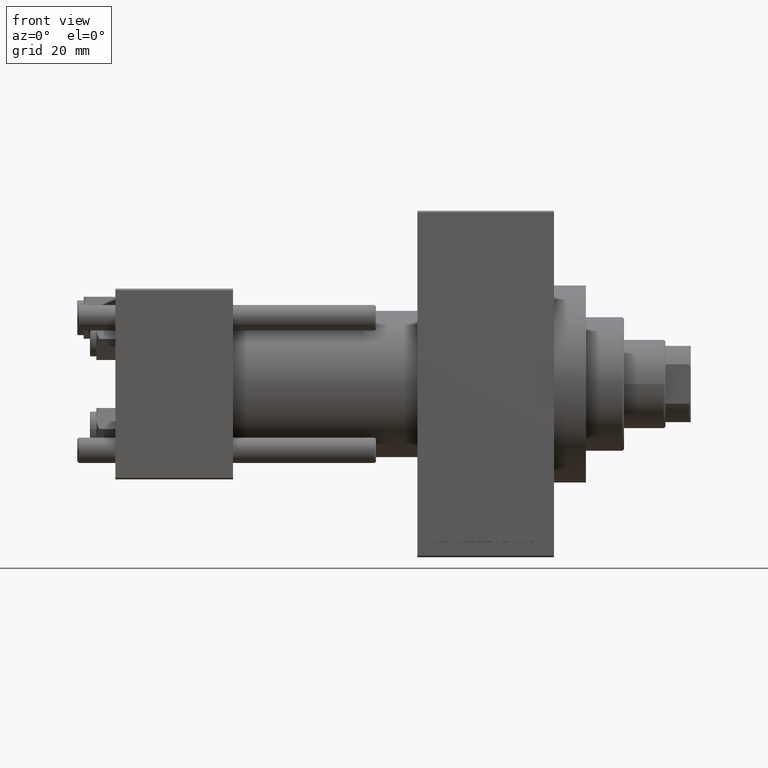
[diagram: clean part render]
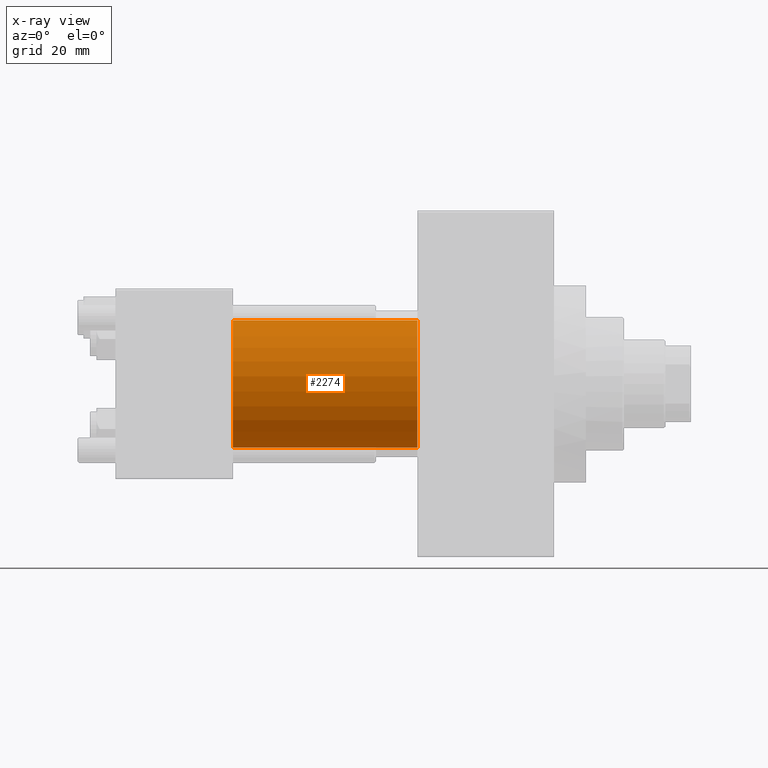
[diagram: x-ray — body ghosted, one internal face saturated and labeled with its STEP entity id]
A machine part, front view, then the same camera in x-ray: the body is ghosted and one INTERNAL B-rep face — a face not visible from any outside direction — is saturated and labeled: STEP entity #2274.
In plain terms, the highlighted cylindrical surface (partial cylindrical patch) has radius 20 mm, axis along (-1, -0, -0).
Its self-contained STEP definition (entity closure, byte-faithful):
#2274 = ADVANCED_FACE ( 'NONE', ( #32295 ), #36205, .F. ) ;
#3833 = ORIENTED_EDGE ( 'NONE', *, *, #36260, .T. ) ;
#5243 = DIRECTION ( 'NONE',  ( 0.000000000000000000, 0.000000000000000000, -1.000000000000000000 ) ) ;
#5250 = VECTOR ( 'NONE', #14786, 1000.000000000000000 ) ;
#6077 = EDGE_CURVE ( 'NONE', #35971, #32759, #11612, .T. ) ;
#6272 = CIRCLE ( 'NONE', #38996, 20.00000000000000000 ) ;
#7564 = CARTESIAN_POINT ( 'NONE',  ( 95.00000000000000000, -2.602085213965210642E-15, 0.000000000000000000 ) ) ;
#8289 = ORIENTED_EDGE ( 'NONE', *, *, #6077, .T. ) ;
#8368 = CARTESIAN_POINT ( 'NONE',  ( 37.00000000000000000, -2.602085213965210642E-15, 0.000000000000000000 ) ) ;
#11612 = CIRCLE ( 'NONE', #38873, 20.00000000000000000 ) ;
#11963 = LINE ( 'NONE', #19282, #44103 ) ;
#14017 = CARTESIAN_POINT ( 'NONE',  ( 37.00000000000000000, -2.602085213965210642E-15, 20.00000000000000000 ) ) ;
#14786 = DIRECTION ( 'NONE',  ( -1.000000000000000000, -0.000000000000000000, -0.000000000000000000 ) ) ;
#15442 = EDGE_LOOP ( 'NONE', ( #8289, #3833, #43507, #39241 ) ) ;
#15452 = DIRECTION ( 'NONE',  ( 0.000000000000000000, 0.000000000000000000, -1.000000000000000000 ) ) ;
#18447 = LINE ( 'NONE', #23496, #5250 ) ;
#19282 = CARTESIAN_POINT ( 'NONE',  ( 95.00000000000000000, -2.602085213965210642E-15, 20.00000000000000000 ) ) ;
#19893 = CARTESIAN_POINT ( 'NONE',  ( 95.00000000000000000, -1.527916156705046464E-16, -20.00000000000000000 ) ) ;
#21968 = VERTEX_POINT ( 'NONE', #44172 ) ;
#23485 = DIRECTION ( 'NONE',  ( 1.000000000000000000, 0.000000000000000000, 0.000000000000000000 ) ) ;
#23496 = CARTESIAN_POINT ( 'NONE',  ( 95.00000000000000000, -1.527916156705046464E-16, -20.00000000000000000 ) ) ;
#27566 = VERTEX_POINT ( 'NONE', #14017 ) ;
#27885 = AXIS2_PLACEMENT_3D ( 'NONE', #7564, #45116, #44638 ) ;
#29427 = EDGE_CURVE ( 'NONE', #35971, #27566, #11963, .T. ) ;
#32295 = FACE_OUTER_BOUND ( 'NONE', #15442, .T. ) ;
#32759 = VERTEX_POINT ( 'NONE', #19893 ) ;
#34162 = DIRECTION ( 'NONE',  ( -1.000000000000000000, -0.000000000000000000, -0.000000000000000000 ) ) ;
#35971 = VERTEX_POINT ( 'NONE', #40158 ) ;
#36205 = CYLINDRICAL_SURFACE ( 'NONE', #27885, 20.00000000000000000 ) ;
#36260 = EDGE_CURVE ( 'NONE', #32759, #21968, #18447, .T. ) ;
#38656 = CARTESIAN_POINT ( 'NONE',  ( 95.00000000000000000, -2.602085213965210642E-15, 0.000000000000000000 ) ) ;
#38873 = AXIS2_PLACEMENT_3D ( 'NONE', #38656, #39139, #5243 ) ;
#38996 = AXIS2_PLACEMENT_3D ( 'NONE', #8368, #23485, #15452 ) ;
#39139 = DIRECTION ( 'NONE',  ( 1.000000000000000000, 0.000000000000000000, 0.000000000000000000 ) ) ;
#39241 = ORIENTED_EDGE ( 'NONE', *, *, #29427, .F. ) ;
#40158 = CARTESIAN_POINT ( 'NONE',  ( 95.00000000000000000, -2.602085213965210642E-15, 20.00000000000000000 ) ) ;
#41822 = EDGE_CURVE ( 'NONE', #27566, #21968, #6272, .T. ) ;
#43507 = ORIENTED_EDGE ( 'NONE', *, *, #41822, .F. ) ;
#44103 = VECTOR ( 'NONE', #34162, 1000.000000000000000 ) ;
#44172 = CARTESIAN_POINT ( 'NONE',  ( 37.00000000000000000, -1.527916156705046464E-16, -20.00000000000000000 ) ) ;
#44638 = DIRECTION ( 'NONE',  ( 0.000000000000000000, 0.000000000000000000, 1.000000000000000000 ) ) ;
#45116 = DIRECTION ( 'NONE',  ( -1.000000000000000000, -0.000000000000000000, -0.000000000000000000 ) ) ;